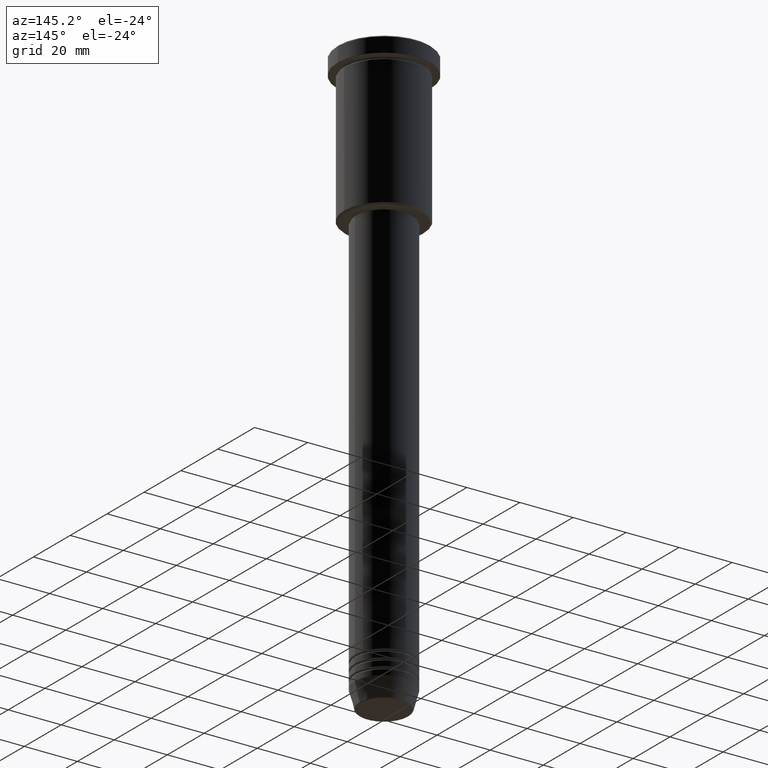
[diagram: clean part render]
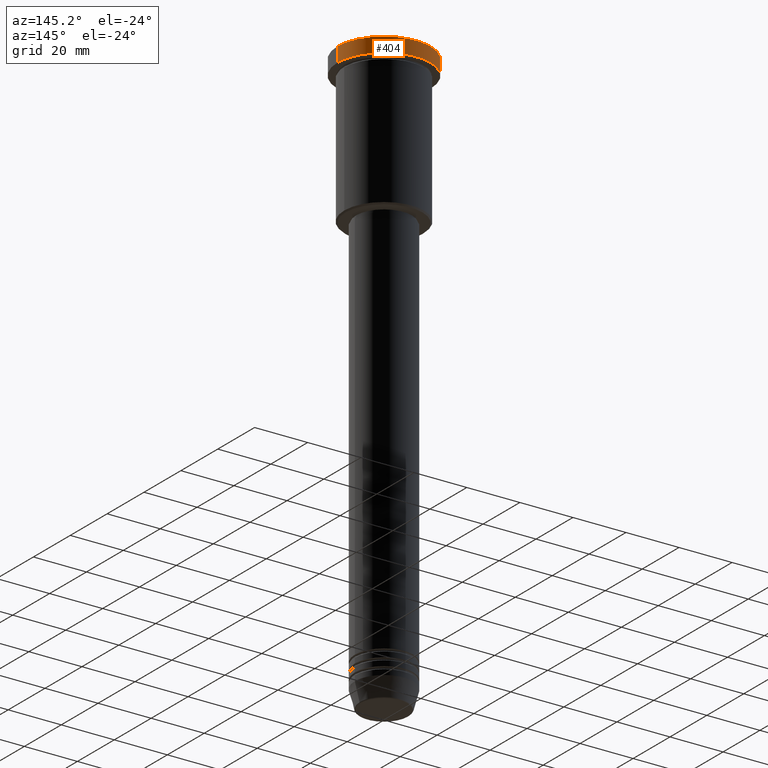
[diagram: same view with one face highlighted and labeled with its STEP entity id]
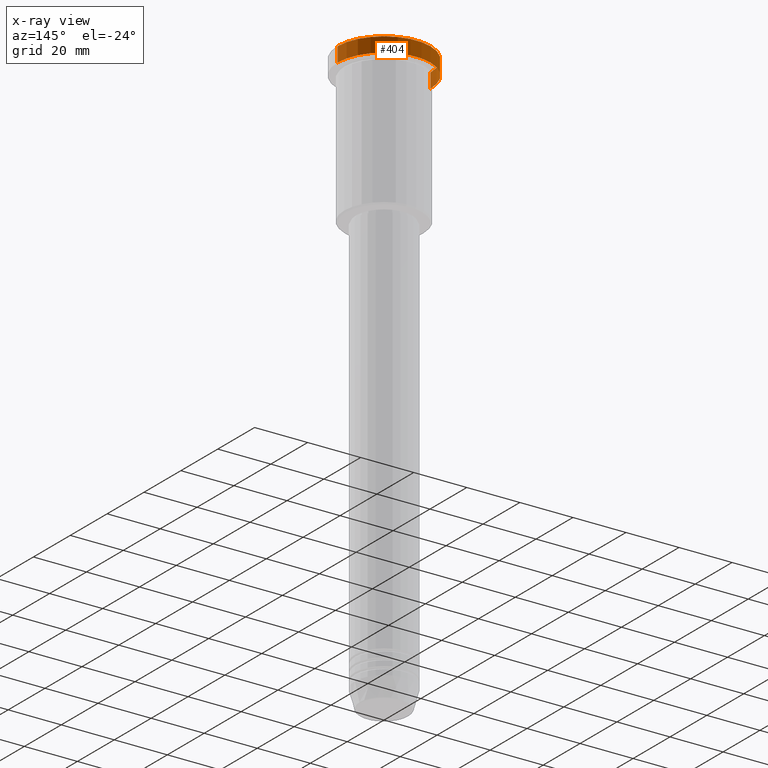
[diagram: x-ray of the same camera — body ghosted, the highlighted face saturated]
A machine part, auxiliary view. The second image highlights one B-rep face of the part: STEP entity #404.
The next image is the same camera in x-ray: the body ghosted, the highlighted face saturated — about 0% of this face is hidden behind the body in this view.
In plain terms, the highlighted cylindrical surface (partial cylindrical patch) has radius 17.5 mm, axis along (-0, -0, 1).
Its self-contained STEP definition (entity closure, byte-faithful):
#17 = DIRECTION ( 'NONE',  ( -0.000000000000000000, -0.000000000000000000, 1.000000000000000000 ) ) ;
#57 = VERTEX_POINT ( 'NONE', #773 ) ;
#78 = VERTEX_POINT ( 'NONE', #967 ) ;
#85 = CIRCLE ( 'NONE', #629, 17.50000000000000000 ) ;
#128 = CARTESIAN_POINT ( 'NONE',  ( 0.000000000000000000, 0.000000000000000000, -5.999999999999995559 ) ) ;
#156 = CARTESIAN_POINT ( 'NONE',  ( 17.50000000000000000, 0.000000000000000000, 0.000000000000000000 ) ) ;
#208 = CYLINDRICAL_SURFACE ( 'NONE', #514, 17.50000000000000000 ) ;
#215 = DIRECTION ( 'NONE',  ( -0.000000000000000000, -0.000000000000000000, 1.000000000000000000 ) ) ;
#249 = ORIENTED_EDGE ( 'NONE', *, *, #359, .F. ) ;
#319 = AXIS2_PLACEMENT_3D ( 'NONE', #469, #916, #558 ) ;
#343 = VECTOR ( 'NONE', #799, 1000.000000000000000 ) ;
#359 = EDGE_CURVE ( 'NONE', #409, #373, #1158, .T. ) ;
#373 = VERTEX_POINT ( 'NONE', #717 ) ;
#388 = DIRECTION ( 'NONE',  ( -0.000000000000000000, -0.000000000000000000, 1.000000000000000000 ) ) ;
#389 = EDGE_CURVE ( 'NONE', #57, #78, #1012, .T. ) ;
#404 = ADVANCED_FACE ( 'NONE', ( #1002 ), #208, .T. ) ;
#409 = VERTEX_POINT ( 'NONE', #1008 ) ;
#469 = CARTESIAN_POINT ( 'NONE',  ( 0.000000000000000000, 0.000000000000000000, -0.5000000000000280886 ) ) ;
#471 = EDGE_CURVE ( 'NONE', #78, #373, #610, .T. ) ;
#474 = CARTESIAN_POINT ( 'NONE',  ( 0.000000000000000000, 0.000000000000000000, 0.000000000000000000 ) ) ;
#511 = EDGE_LOOP ( 'NONE', ( #1046, #936, #918, #249 ) ) ;
#514 = AXIS2_PLACEMENT_3D ( 'NONE', #474, #388, #645 ) ;
#525 = EDGE_CURVE ( 'NONE', #409, #57, #85, .T. ) ;
#558 = DIRECTION ( 'NONE',  ( 1.000000000000000000, 0.000000000000000000, 0.000000000000000000 ) ) ;
#610 = CIRCLE ( 'NONE', #319, 17.50000000000000000 ) ;
#629 = AXIS2_PLACEMENT_3D ( 'NONE', #128, #215, #1034 ) ;
#645 = DIRECTION ( 'NONE',  ( 1.000000000000000000, 0.000000000000000000, 0.000000000000000000 ) ) ;
#667 = VECTOR ( 'NONE', #17, 1000.000000000000000 ) ;
#717 = CARTESIAN_POINT ( 'NONE',  ( 17.50000000000000000, 0.000000000000000000, -0.5000000000000280886 ) ) ;
#773 = CARTESIAN_POINT ( 'NONE',  ( -17.50000000000000000, 2.143131898507868248E-15, -5.999999999999995559 ) ) ;
#799 = DIRECTION ( 'NONE',  ( -0.000000000000000000, -0.000000000000000000, 1.000000000000000000 ) ) ;
#916 = DIRECTION ( 'NONE',  ( 0.000000000000000000, 0.000000000000000000, -1.000000000000000000 ) ) ;
#918 = ORIENTED_EDGE ( 'NONE', *, *, #471, .T. ) ;
#936 = ORIENTED_EDGE ( 'NONE', *, *, #389, .T. ) ;
#967 = CARTESIAN_POINT ( 'NONE',  ( -17.50000000000000000, 2.143131898507868248E-15, -0.5000000000000280886 ) ) ;
#1002 = FACE_OUTER_BOUND ( 'NONE', #511, .T. ) ;
#1008 = CARTESIAN_POINT ( 'NONE',  ( 17.50000000000000000, 0.000000000000000000, -5.999999999999995559 ) ) ;
#1012 = LINE ( 'NONE', #1089, #667 ) ;
#1034 = DIRECTION ( 'NONE',  ( 1.000000000000000000, 0.000000000000000000, 0.000000000000000000 ) ) ;
#1046 = ORIENTED_EDGE ( 'NONE', *, *, #525, .T. ) ;
#1089 = CARTESIAN_POINT ( 'NONE',  ( -17.50000000000000000, 2.143131898507868248E-15, 0.000000000000000000 ) ) ;
#1158 = LINE ( 'NONE', #156, #343 ) ;